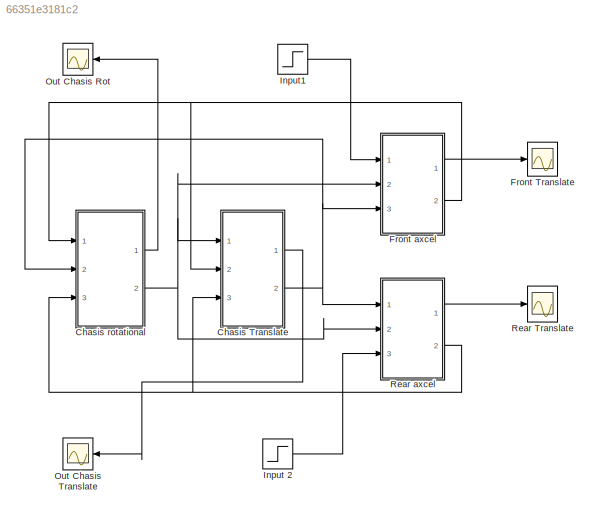
MODEL slx_66351e3181c2
KIND model
CONFIG AbsTol = auto
CONFIG EnableMultiTasking = off
CONFIG FixedStep = auto
CONFIG MaxStep = 1
CONFIG MinStep = auto
CONFIG RelTol = 1e-3
CONFIG SampleTimeConstraint = Unconstrained
CONFIG SolverName = ode15s
CONFIG StartTime = 0.0
CONFIG StopTime = 5
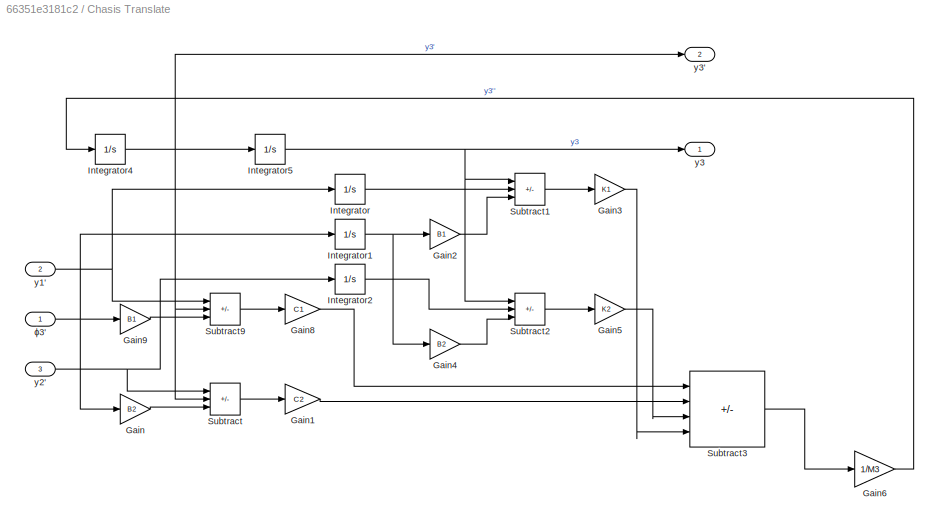
BLOCK [SubSystem] Chasis Translate
  Ports = [3, 2]
  RequestExecContextInheritance = off
BLOCK [Gain] Chasis Translate/Gain
  Gain = B2
BLOCK [Gain] Chasis Translate/Gain1
  Gain = C2
BLOCK [Gain] Chasis Translate/Gain2
  Gain = B1
BLOCK [Gain] Chasis Translate/Gain3
  Gain = K1
BLOCK [Gain] Chasis Translate/Gain4
  Gain = B2
BLOCK [Gain] Chasis Translate/Gain5
  Gain = K2
BLOCK [Gain] Chasis Translate/Gain6
  Gain = 1/M3
BLOCK [Gain] Chasis Translate/Gain8
  Gain = C1
BLOCK [Gain] Chasis Translate/Gain9
  Gain = B1
BLOCK [Integrator] Chasis Translate/Integrator
  Ports = [1, 1]
BLOCK [Integrator] Chasis Translate/Integrator1
  Ports = [1, 1]
BLOCK [Integrator] Chasis Translate/Integrator2
  Ports = [1, 1]
BLOCK [Integrator] Chasis Translate/Integrator4
  Ports = [1, 1]
BLOCK [Integrator] Chasis Translate/Integrator5
  Ports = [1, 1]
BLOCK [Sum] Chasis Translate/Subtract
  IconShape = rectangular
  Inputs = -++
  Ports = [3, 1]
BLOCK [Sum] Chasis Translate/Subtract1
  IconShape = rectangular
  Inputs = +--
  Ports = [3, 1]
BLOCK [Sum] Chasis Translate/Subtract2
  IconShape = rectangular
  Inputs = +-+
  Ports = [3, 1]
BLOCK [Sum] Chasis Translate/Subtract3
  IconShape = rectangular
  Inputs = ----
  Ports = [4, 1]
BLOCK [Sum] Chasis Translate/Subtract9
  IconShape = rectangular
  Inputs = -+-
  Ports = [3, 1]
BLOCK [Inport] Chasis Translate/y1'
  Port = 2
BLOCK [Inport] Chasis Translate/y2'
  Port = 3
BLOCK [Outport] Chasis Translate/y3
BLOCK [Outport] Chasis Translate/y3'
  Port = 2
BLOCK [Inport] Chasis Translate/ϕ3'
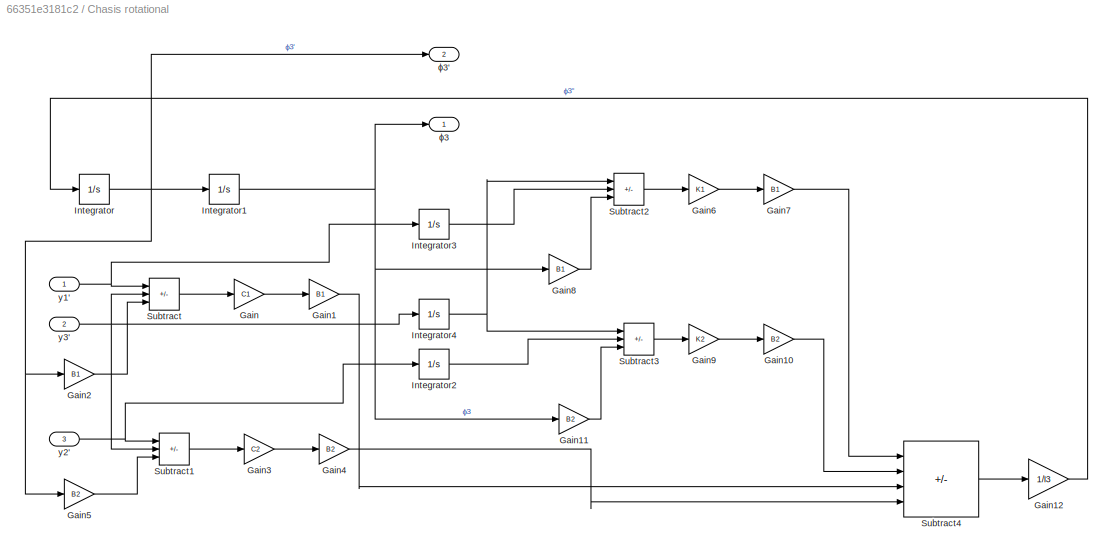
BLOCK [SubSystem] Chasis rotational
  Ports = [3, 2]
  RequestExecContextInheritance = off
BLOCK [Gain] Chasis rotational/Gain
  Gain = C1
BLOCK [Gain] Chasis rotational/Gain1
  Gain = B1
BLOCK [Gain] Chasis rotational/Gain10
  Gain = B2
BLOCK [Gain] Chasis rotational/Gain11
  Gain = B2
BLOCK [Gain] Chasis rotational/Gain12
  Gain = 1/I3
BLOCK [Gain] Chasis rotational/Gain2
  Gain = B1
BLOCK [Gain] Chasis rotational/Gain3
  Gain = C2
BLOCK [Gain] Chasis rotational/Gain4
  Gain = B2
BLOCK [Gain] Chasis rotational/Gain5
  Gain = B2
BLOCK [Gain] Chasis rotational/Gain6
  Gain = K1
BLOCK [Gain] Chasis rotational/Gain7
  Gain = B1
BLOCK [Gain] Chasis rotational/Gain8
  Gain = B1
BLOCK [Gain] Chasis rotational/Gain9
  Gain = K2
BLOCK [Integrator] Chasis rotational/Integrator
  Ports = [1, 1]
BLOCK [Integrator] Chasis rotational/Integrator1
  Ports = [1, 1]
BLOCK [Integrator] Chasis rotational/Integrator2
  Ports = [1, 1]
BLOCK [Integrator] Chasis rotational/Integrator3
  Ports = [1, 1]
BLOCK [Integrator] Chasis rotational/Integrator4
  Ports = [1, 1]
BLOCK [Sum] Chasis rotational/Subtract
  IconShape = rectangular
  Inputs = -+-
  Ports = [3, 1]
BLOCK [Sum] Chasis rotational/Subtract1
  IconShape = rectangular
  Inputs = -++
  Ports = [3, 1]
BLOCK [Sum] Chasis rotational/Subtract2
  IconShape = rectangular
  Inputs = +--
  Ports = [3, 1]
BLOCK [Sum] Chasis rotational/Subtract3
  IconShape = rectangular
  Inputs = +-+
  Ports = [3, 1]
BLOCK [Sum] Chasis rotational/Subtract4
  IconShape = rectangular
  Inputs = +-+-
  Ports = [4, 1]
BLOCK [Inport] Chasis rotational/y1'
BLOCK [Inport] Chasis rotational/y2'
  Port = 3
BLOCK [Inport] Chasis rotational/y3'
  Port = 2
BLOCK [Outport] Chasis rotational/ϕ3
BLOCK [Outport] Chasis rotational/ϕ3'
  Port = 2
BLOCK [Scope] Front Translate
  Floating = off
  NumInputPorts = 1
  Ports = [1]
  ScopeSpecificationString = Simulink.scopes.TimeScopeBlockCfg('CurrentConfiguration', extmgr.ConfigurationSet(extmgr.Configuration('Core','General UI',true),extmgr.Configuration('Core','Source UI',true),extmgr.Configuration('Sources','WiredSimulink',true),extmgr.Configuration('Visuals','Time Domain',true,'SerializedDisplays',{struct('MinYLimReal','-0.16173','MaxYLimReal','1.4556','YLabelReal','','MinYLimMag','0.00000','MaxYL...<+1382ch>
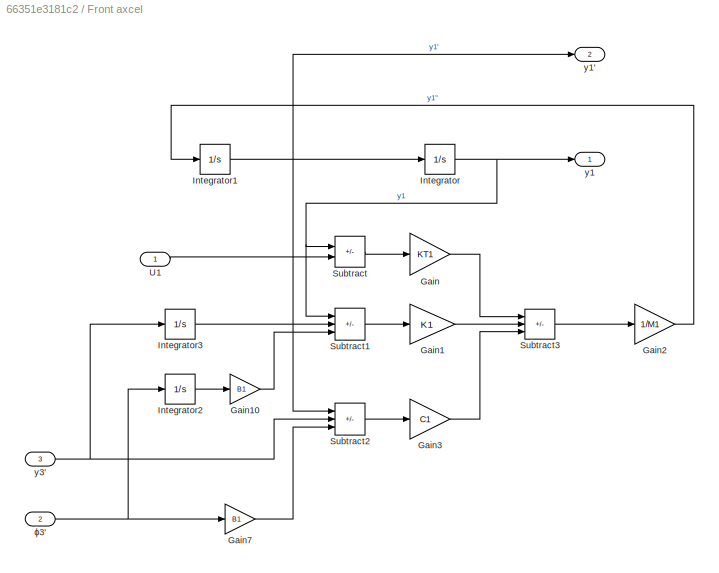
BLOCK [SubSystem] Front axcel
  Ports = [3, 2]
  RequestExecContextInheritance = off
BLOCK [Gain] Front axcel/Gain
  Gain = KT1
BLOCK [Gain] Front axcel/Gain1
  Gain = K1
BLOCK [Gain] Front axcel/Gain10
  Gain = B1
BLOCK [Gain] Front axcel/Gain2
  Gain = 1/M1
BLOCK [Gain] Front axcel/Gain3
  Gain = C1
BLOCK [Gain] Front axcel/Gain7
  Gain = B1
BLOCK [Integrator] Front axcel/Integrator
  Ports = [1, 1]
BLOCK [Integrator] Front axcel/Integrator1
  Ports = [1, 1]
BLOCK [Integrator] Front axcel/Integrator2
  Ports = [1, 1]
BLOCK [Integrator] Front axcel/Integrator3
  Ports = [1, 1]
BLOCK [Sum] Front axcel/Subtract
  IconShape = rectangular
  Inputs = +-
  Ports = [2, 1]
BLOCK [Sum] Front axcel/Subtract1
  IconShape = rectangular
  Inputs = -+-
  Ports = [3, 1]
BLOCK [Sum] Front axcel/Subtract2
  IconShape = rectangular
  Inputs = -+-
  Ports = [3, 1]
BLOCK [Sum] Front axcel/Subtract3
  IconShape = rectangular
  Inputs = -++
  Ports = [3, 1]
BLOCK [Inport] Front axcel/U1
BLOCK [Outport] Front axcel/y1
BLOCK [Outport] Front axcel/y1'
  Port = 2
BLOCK [Inport] Front axcel/y3'
  Port = 3
BLOCK [Inport] Front axcel/ϕ3'
  Port = 2
BLOCK [Step] Input 2
  SampleTime = 0
  Time = 3
BLOCK [Step] Input1
  SampleTime = 0
BLOCK [Scope] Out Chasis Rot
  Floating = off
  NameLocation = top
  NumInputPorts = 1
  Ports = [1]
  ScopeSpecificationString = Simulink.scopes.TimeScopeBlockCfg('CurrentConfiguration', extmgr.ConfigurationSet(extmgr.Configuration('Core','General UI',true),extmgr.Configuration('Core','Source UI',true),extmgr.Configuration('Sources','WiredSimulink',true,'DataLoggingVariableName','ScopeData1'),extmgr.Configuration('Visuals','Time Domain',true,'SerializedDisplays',{struct('MinYLimReal','-0.62748','MaxYLimReal','0.21926','YLab...<+1433ch>
BLOCK [Scope] Out Chasis Translate
  Floating = off
  NameLocation = top
  NumInputPorts = 1
  Ports = [1]
  ScopeSpecificationString = Simulink.scopes.TimeScopeBlockCfg('CurrentConfiguration', extmgr.ConfigurationSet(extmgr.Configuration('Core','General UI',true),extmgr.Configuration('Core','Source UI',true),extmgr.Configuration('Sources','WiredSimulink',true,'DataLoggingVariableName','ScopeData2'),extmgr.Configuration('Visuals','Time Domain',true,'SerializedDisplays',{struct('MinYLimReal','-0.16522','MaxYLimReal','1.48702','YLab...<+1378ch>
BLOCK [Scope] Rear Translate
  Floating = off
  NumInputPorts = 1
  Ports = [1]
  ScopeSpecificationString = Simulink.scopes.TimeScopeBlockCfg('CurrentConfiguration', extmgr.ConfigurationSet(extmgr.Configuration('Core','General UI',true),extmgr.Configuration('Core','Source UI',true),extmgr.Configuration('Sources','WiredSimulink',true,'DataLoggingVariableName','ScopeData1'),extmgr.Configuration('Visuals','Time Domain',true,'SerializedDisplays',{struct('MinYLimReal','-0.24998','MaxYLimReal','1.53948','YLab...<+1400ch>
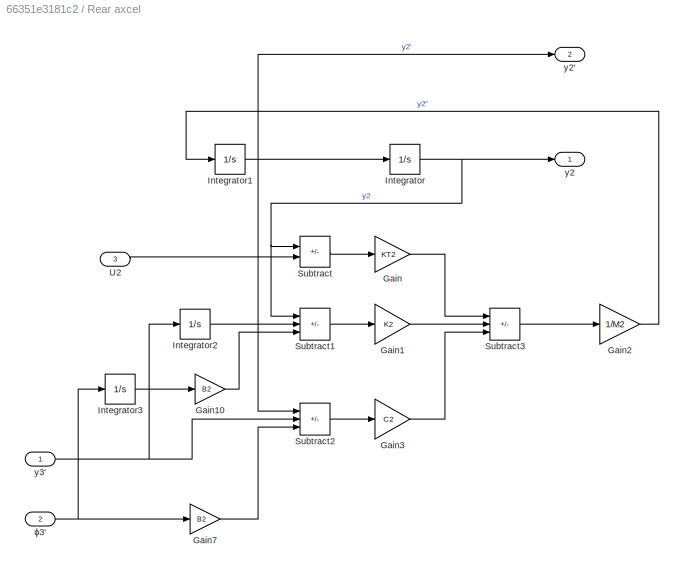
BLOCK [SubSystem] Rear axcel
  Ports = [3, 2]
  RequestExecContextInheritance = off
BLOCK [Gain] Rear axcel/Gain
  Gain = KT2
BLOCK [Gain] Rear axcel/Gain1
  Gain = K2
BLOCK [Gain] Rear axcel/Gain10
  Gain = B2
BLOCK [Gain] Rear axcel/Gain2
  Gain = 1/M2
BLOCK [Gain] Rear axcel/Gain3
  Gain = C2
BLOCK [Gain] Rear axcel/Gain7
  Gain = B2
BLOCK [Integrator] Rear axcel/Integrator
  Ports = [1, 1]
BLOCK [Integrator] Rear axcel/Integrator1
  Ports = [1, 1]
BLOCK [Integrator] Rear axcel/Integrator2
  Ports = [1, 1]
BLOCK [Integrator] Rear axcel/Integrator3
  Ports = [1, 1]
BLOCK [Sum] Rear axcel/Subtract
  IconShape = rectangular
  Inputs = +-
  Ports = [2, 1]
BLOCK [Sum] Rear axcel/Subtract1
  IconShape = rectangular
  Inputs = -++
  Ports = [3, 1]
BLOCK [Sum] Rear axcel/Subtract2
  IconShape = rectangular
  Inputs = -++
  Ports = [3, 1]
BLOCK [Sum] Rear axcel/Subtract3
  IconShape = rectangular
  Inputs = -++
  Ports = [3, 1]
BLOCK [Inport] Rear axcel/U2
  Port = 3
BLOCK [Outport] Rear axcel/y2
BLOCK [Outport] Rear axcel/y2'
  Port = 2
BLOCK [Inport] Rear axcel/y3'
BLOCK [Inport] Rear axcel/ϕ3'
  Port = 2
LINE Chasis Translate/Gain1:1 -> Chasis Translate/Subtract3:2
LINE Chasis Translate/Gain2:1 -> Chasis Translate/Subtract1:3
LINE Chasis Translate/Gain3:1 -> Chasis Translate/Subtract3:4
LINE Chasis Translate/Gain4:1 -> Chasis Translate/Subtract2:3
LINE Chasis Translate/Gain5:1 -> Chasis Translate/Subtract3:3
LINE Chasis Translate/Gain6:1 -> Chasis Translate/Integrator4:1
LINE Chasis Translate/Gain8:1 -> Chasis Translate/Subtract3:1
LINE Chasis Translate/Gain9:1 -> Chasis Translate/Subtract9:3
LINE Chasis Translate/Gain:1 -> Chasis Translate/Subtract:3
NET Chasis Translate/Integrator1:1 -> Chasis Translate/Gain2:1, Chasis Translate/Gain4:1
LINE Chasis Translate/Integrator2:1 -> Chasis Translate/Subtract2:2
NET Chasis Translate/Integrator4:1 -> Chasis Translate/Integrator5:1, Chasis Translate/Subtract9:2, Chasis Translate/Subtract:2, Chasis Translate/y3':1
NET Chasis Translate/Integrator5:1 -> Chasis Translate/Subtract1:1, Chasis Translate/Subtract2:1, Chasis Translate/y3:1
LINE Chasis Translate/Integrator:1 -> Chasis Translate/Subtract1:2
LINE Chasis Translate/Subtract1:1 -> Chasis Translate/Gain3:1
LINE Chasis Translate/Subtract2:1 -> Chasis Translate/Gain5:1
LINE Chasis Translate/Subtract3:1 -> Chasis Translate/Gain6:1
LINE Chasis Translate/Subtract9:1 -> Chasis Translate/Gain8:1
LINE Chasis Translate/Subtract:1 -> Chasis Translate/Gain1:1
NET Chasis Translate/y1':1 -> Chasis Translate/Integrator:1, Chasis Translate/Subtract9:1
NET Chasis Translate/y2':1 -> Chasis Translate/Integrator2:1, Chasis Translate/Subtract:1
NET Chasis Translate/ϕ3':1 -> Chasis Translate/Gain9:1, Chasis Translate/Gain:1, Chasis Translate/Integrator1:1
LINE Chasis Translate:1 -> Out Chasis Translate:1
NET Chasis Translate:2 -> Chasis rotational:2, Front axcel:3, Rear axcel:1
LINE Chasis rotational/Gain10:1 -> Chasis rotational/Subtract4:2
LINE Chasis rotational/Gain11:1 -> Chasis rotational/Subtract3:3
LINE Chasis rotational/Gain12:1 -> Chasis rotational/Integrator:1
LINE Chasis rotational/Gain1:1 -> Chasis rotational/Subtract4:3
LINE Chasis rotational/Gain2:1 -> Chasis rotational/Subtract:3
LINE Chasis rotational/Gain3:1 -> Chasis rotational/Gain4:1
LINE Chasis rotational/Gain4:1 -> Chasis rotational/Subtract4:4
LINE Chasis rotational/Gain5:1 -> Chasis rotational/Subtract1:3
LINE Chasis rotational/Gain6:1 -> Chasis rotational/Gain7:1
LINE Chasis rotational/Gain7:1 -> Chasis rotational/Subtract4:1
LINE Chasis rotational/Gain8:1 -> Chasis rotational/Subtract2:3
LINE Chasis rotational/Gain9:1 -> Chasis rotational/Gain10:1
LINE Chasis rotational/Gain:1 -> Chasis rotational/Gain1:1
NET Chasis rotational/Integrator1:1 -> Chasis rotational/Gain11:1, Chasis rotational/Gain8:1, Chasis rotational/ϕ3:1
LINE Chasis rotational/Integrator2:1 -> Chasis rotational/Subtract3:2
LINE Chasis rotational/Integrator3:1 -> Chasis rotational/Subtract2:2
NET Chasis rotational/Integrator4:1 -> Chasis rotational/Subtract2:1, Chasis rotational/Subtract3:1
NET Chasis rotational/Integrator:1 -> Chasis rotational/Gain2:1, Chasis rotational/Gain5:1, Chasis rotational/Integrator1:1, Chasis rotational/ϕ3':1
LINE Chasis rotational/Subtract1:1 -> Chasis rotational/Gain3:1
LINE Chasis rotational/Subtract2:1 -> Chasis rotational/Gain6:1
LINE Chasis rotational/Subtract3:1 -> Chasis rotational/Gain9:1
LINE Chasis rotational/Subtract4:1 -> Chasis rotational/Gain12:1
LINE Chasis rotational/Subtract:1 -> Chasis rotational/Gain:1
NET Chasis rotational/y1':1 -> Chasis rotational/Integrator3:1, Chasis rotational/Subtract:1
NET Chasis rotational/y2':1 -> Chasis rotational/Integrator2:1, Chasis rotational/Subtract1:1
NET Chasis rotational/y3':1 -> Chasis rotational/Integrator4:1, Chasis rotational/Subtract1:2, Chasis rotational/Subtract:2
LINE Chasis rotational:1 -> Out Chasis Rot:1
NET Chasis rotational:2 -> Chasis Translate:1, Front axcel:2, Rear axcel:2
LINE Front axcel/Gain10:1 -> Front axcel/Subtract1:3
LINE Front axcel/Gain1:1 -> Front axcel/Subtract3:2
LINE Front axcel/Gain2:1 -> Front axcel/Integrator1:1
LINE Front axcel/Gain3:1 -> Front axcel/Subtract3:3
LINE Front axcel/Gain7:1 -> Front axcel/Subtract2:3
LINE Front axcel/Gain:1 -> Front axcel/Subtract3:1
NET Front axcel/Integrator1:1 -> Front axcel/Integrator:1, Front axcel/Subtract2:1, Front axcel/y1':1
LINE Front axcel/Integrator2:1 -> Front axcel/Gain10:1
LINE Front axcel/Integrator3:1 -> Front axcel/Subtract1:2
NET Front axcel/Integrator:1 -> Front axcel/Subtract1:1, Front axcel/Subtract:1, Front axcel/y1:1
LINE Front axcel/Subtract1:1 -> Front axcel/Gain1:1
LINE Front axcel/Subtract2:1 -> Front axcel/Gain3:1
LINE Front axcel/Subtract3:1 -> Front axcel/Gain2:1
LINE Front axcel/Subtract:1 -> Front axcel/Gain:1
LINE Front axcel/U1:1 -> Front axcel/Subtract:2
NET Front axcel/y3':1 -> Front axcel/Integrator3:1, Front axcel/Subtract2:2
NET Front axcel/ϕ3':1 -> Front axcel/Gain7:1, Front axcel/Integrator2:1
LINE Front axcel:1 -> Front Translate:1
NET Front axcel:2 -> Chasis Translate:2, Chasis rotational:1
LINE Input 2:1 -> Rear axcel:3
LINE Input1:1 -> Front axcel:1
LINE Rear axcel/Gain10:1 -> Rear axcel/Subtract1:3
LINE Rear axcel/Gain1:1 -> Rear axcel/Subtract3:2
LINE Rear axcel/Gain2:1 -> Rear axcel/Integrator1:1
LINE Rear axcel/Gain3:1 -> Rear axcel/Subtract3:3
LINE Rear axcel/Gain7:1 -> Rear axcel/Subtract2:3
LINE Rear axcel/Gain:1 -> Rear axcel/Subtract3:1
NET Rear axcel/Integrator1:1 -> Rear axcel/Integrator:1, Rear axcel/Subtract2:1, Rear axcel/y2':1
LINE Rear axcel/Integrator2:1 -> Rear axcel/Subtract1:2
LINE Rear axcel/Integrator3:1 -> Rear axcel/Gain10:1
NET Rear axcel/Integrator:1 -> Rear axcel/Subtract1:1, Rear axcel/Subtract:1, Rear axcel/y2:1
LINE Rear axcel/Subtract1:1 -> Rear axcel/Gain1:1
LINE Rear axcel/Subtract2:1 -> Rear axcel/Gain3:1
LINE Rear axcel/Subtract3:1 -> Rear axcel/Gain2:1
LINE Rear axcel/Subtract:1 -> Rear axcel/Gain:1
LINE Rear axcel/U2:1 -> Rear axcel/Subtract:2
NET Rear axcel/y3':1 -> Rear axcel/Integrator2:1, Rear axcel/Subtract2:2
NET Rear axcel/ϕ3':1 -> Rear axcel/Gain7:1, Rear axcel/Integrator3:1
LINE Rear axcel:1 -> Rear Translate:1
NET Rear axcel:2 -> Chasis Translate:3, Chasis rotational:3
note: NET lines group one-source signal fan-out (src -> all destinations, sorted); 1:1 wires keep LINE
